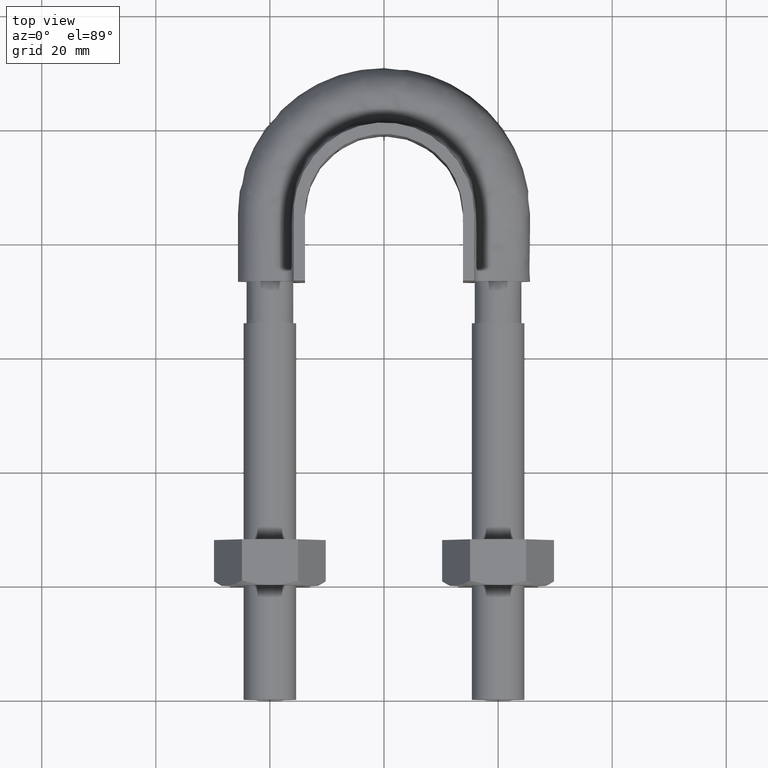
[diagram: clean part render]
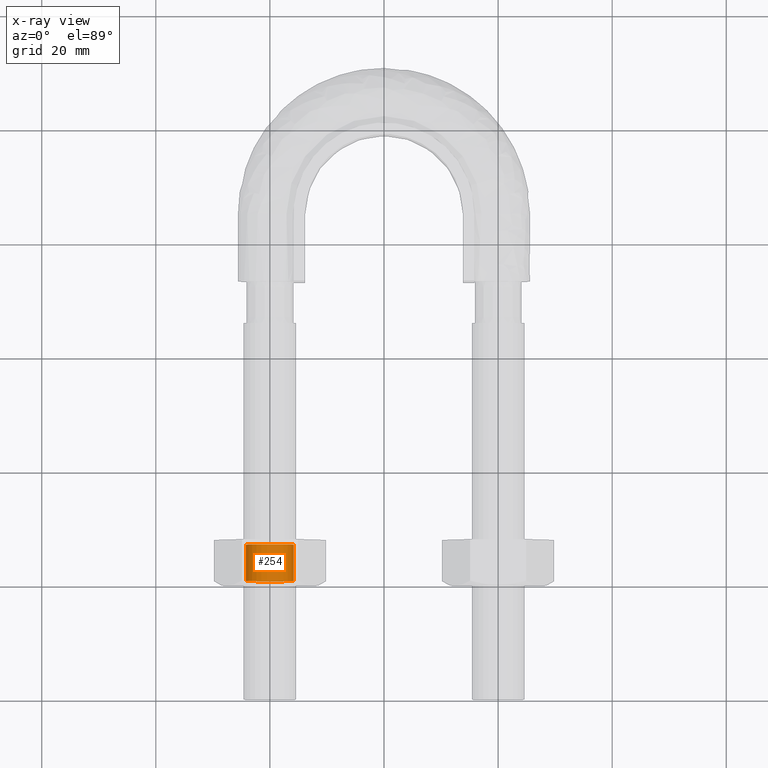
[diagram: x-ray — body ghosted, one internal face saturated and labeled with its STEP entity id]
A machine part, top view, then the same camera in x-ray: the body is ghosted and one INTERNAL B-rep face — a face not visible from any outside direction — is saturated and labeled: STEP entity #254.
In plain terms, the highlighted cylindrical surface (bore or boss wall) has radius 4.188 mm, axis along (0, 1, 0).
Its self-contained STEP definition (entity closure, byte-faithful):
#254 = ADVANCED_FACE( '', ( #361, #362 ), #363, .F. );
#361 = FACE_OUTER_BOUND( '', #1219, .T. );
#362 = FACE_OUTER_BOUND( '', #1220, .T. );
#363 = CYLINDRICAL_SURFACE( '', #1221, 4.18800000000000 );
#1219 = EDGE_LOOP( '', ( #1544 ) );
#1220 = EDGE_LOOP( '', ( #1545 ) );
#1221 = AXIS2_PLACEMENT_3D( '', #1546, #1547, #1548 );
#1544 = ORIENTED_EDGE( '', *, *, #1806, .F. );
#1545 = ORIENTED_EDGE( '', *, *, #1774, .T. );
#1546 = CARTESIAN_POINT( '', ( -20.0000000000000, 27.9999999999975, 2.44921270764399E-016 ) );
#1547 = DIRECTION( '', ( 4.89842541528951E-016, 1.00000000000000, 6.12303176911187E-017 ) );
#1548 = DIRECTION( '', ( -0.866025403784371, 3.93600925972806E-016, 0.500000000000117 ) );
#1774 = EDGE_CURVE( '', #1930, #1930, #1931, .T. );
#1806 = EDGE_CURVE( '', #1979, #1979, #1980, .F. );
#1930 = VERTEX_POINT( '', #2347 );
#1931 = CIRCLE( '', #2348, 4.18800000000000 );
#1979 = VERTEX_POINT( '', #2435 );
#1980 = CIRCLE( '', #2436, 4.18800000000000 );
#2347 = CARTESIAN_POINT( '', ( -24.1880000000000, 27.1879999999978, 1.95202252799226E-016 ) );
#2348 = AXIS2_PLACEMENT_3D( '', #2647, #2648, #2649 );
#2435 = CARTESIAN_POINT( '', ( -15.8120000000000, 20.8120000000000, -1.95202252799211E-016 ) );
#2436 = AXIS2_PLACEMENT_3D( '', #2700, #2701, #2702 );
#2647 = CARTESIAN_POINT( '', ( -20.0000000000000, 27.1879999999978, 1.95202252799226E-016 ) );
#2648 = DIRECTION( '', ( 4.89842541528951E-016, 1.00000000000000, 6.12303176911187E-017 ) );
#2649 = DIRECTION( '', ( -1.00000000000000, 4.89842541528951E-016, 0.000000000000000 ) );
#2700 = CARTESIAN_POINT( '', ( -20.0000000000000, 20.8120000000000, -1.95202252799211E-016 ) );
#2701 = DIRECTION( '', ( -4.89842541528951E-016, -1.00000000000000, -6.12303176911186E-017 ) );
#2702 = DIRECTION( '', ( 1.00000000000000, -4.89842541528951E-016, 0.000000000000000 ) );